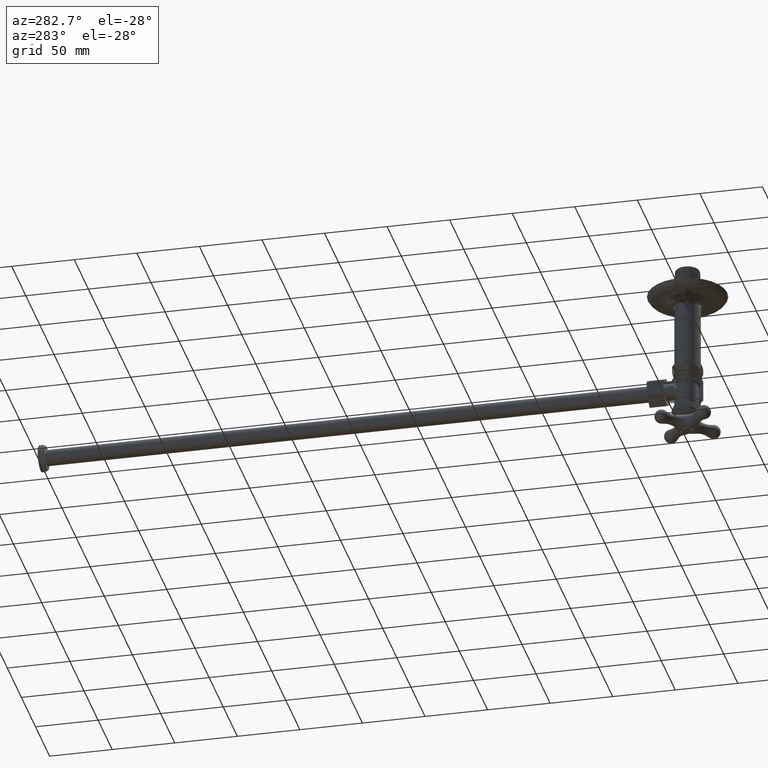
[diagram: clean part render]
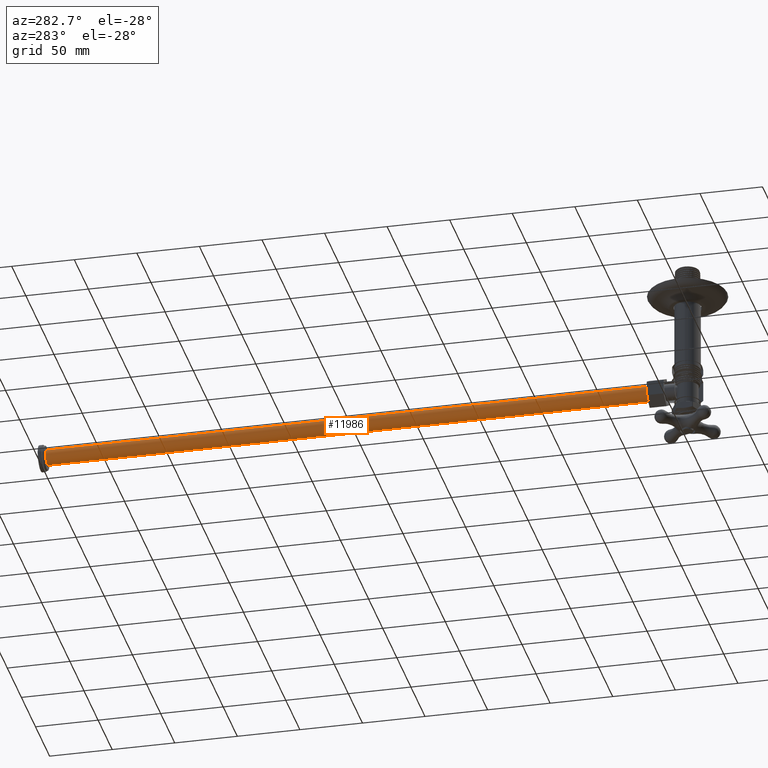
[diagram: same view with one face highlighted and labeled with its STEP entity id]
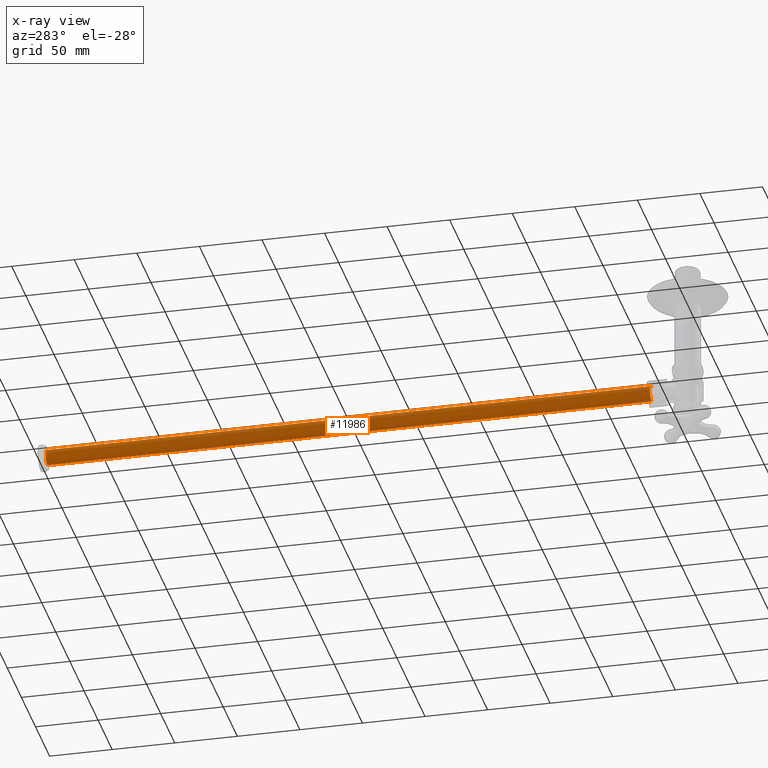
[diagram: x-ray of the same camera — body ghosted, the highlighted face saturated]
A machine part, auxiliary view. The second image highlights one B-rep face of the part: STEP entity #11986.
The next image is the same camera in x-ray: the body ghosted, the highlighted face saturated — about 0% of this face is hidden behind the body in this view.
In plain terms, the highlighted cylindrical surface (edge-blend (fillet) strip) has radius 6.35 mm, axis along (0, -1, 0).
Its self-contained STEP definition (entity closure, byte-faithful):
#1642=CARTESIAN_POINT('',(0.E0,1.1325E0,0.E0));
#1643=DIRECTION('',(0.E0,-1.E0,0.E0));
#1644=DIRECTION('',(2.059349286905E-13,0.E0,1.E0));
#1645=AXIS2_PLACEMENT_3D('',#1642,#1643,#1644);
#1716=DIRECTION('',(4.140745655009E-11,1.E0,0.E0));
#1717=VECTOR('',#1716,1.90075E1);
#1718=CARTESIAN_POINT('',(5.148373217263E-14,1.1325E0,2.5E-1));
#1719=LINE('',#1718,#1717);
#1720=DIRECTION('',(4.140745124603E-11,-1.E0,0.E0));
#1721=VECTOR('',#1720,1.90075E1);
#1722=CARTESIAN_POINT('',(-7.871038251303E-10,2.014E1,-2.5E-1));
#1723=LINE('',#1722,#1721);
#4038=CARTESIAN_POINT('',(0.E0,2.014E1,0.E0));
#4039=DIRECTION('',(0.E0,1.E0,0.E0));
#4040=DIRECTION('',(0.E0,0.E0,-1.E0));
#4041=AXIS2_PLACEMENT_3D('',#4038,#4039,#4040);
#8608=CARTESIAN_POINT('',(0.E0,2.014E1,-2.5E-1));
#8609=CARTESIAN_POINT('',(5.137270987016E-14,2.014E1,2.5E-1));
#8610=VERTEX_POINT('',#8608);
#8611=VERTEX_POINT('',#8609);
#9963=CARTESIAN_POINT('',(5.148373217263E-14,1.1325E0,2.5E-1));
#9964=CARTESIAN_POINT('',(-5.173639294753E-14,1.1325E0,-2.5E-1));
#9965=VERTEX_POINT('',#9963);
#9966=VERTEX_POINT('',#9964);
#11971=CARTESIAN_POINT('',(0.E0,2.05358E1,0.E0));
#11972=DIRECTION('',(0.E0,-1.E0,0.E0));
#11973=DIRECTION('',(0.E0,0.E0,-1.E0));
#11974=AXIS2_PLACEMENT_3D('',#11971,#11972,#11973);
#11975=CYLINDRICAL_SURFACE('',#11974,2.5E-1);
#11977=ORIENTED_EDGE('',*,*,#11976,.T.);
#11979=ORIENTED_EDGE('',*,*,#11978,.F.);
#11981=ORIENTED_EDGE('',*,*,#11980,.T.);
#11983=ORIENTED_EDGE('',*,*,#11982,.F.);
#11984=EDGE_LOOP('',(#11977,#11979,#11981,#11983));
#11985=FACE_OUTER_BOUND('',#11984,.F.);
#11986=ADVANCED_FACE('',(#11985),#11975,.T.);
#1646=CIRCLE('',#1645,2.5E-1);
#4042=CIRCLE('',#4041,2.5E-1);
#11976=EDGE_CURVE('',#9965,#9966,#1646,.T.);
#11978=EDGE_CURVE('',#8610,#9966,#1723,.T.);
#11980=EDGE_CURVE('',#8610,#8611,#4042,.T.);
#11982=EDGE_CURVE('',#9965,#8611,#1719,.T.);